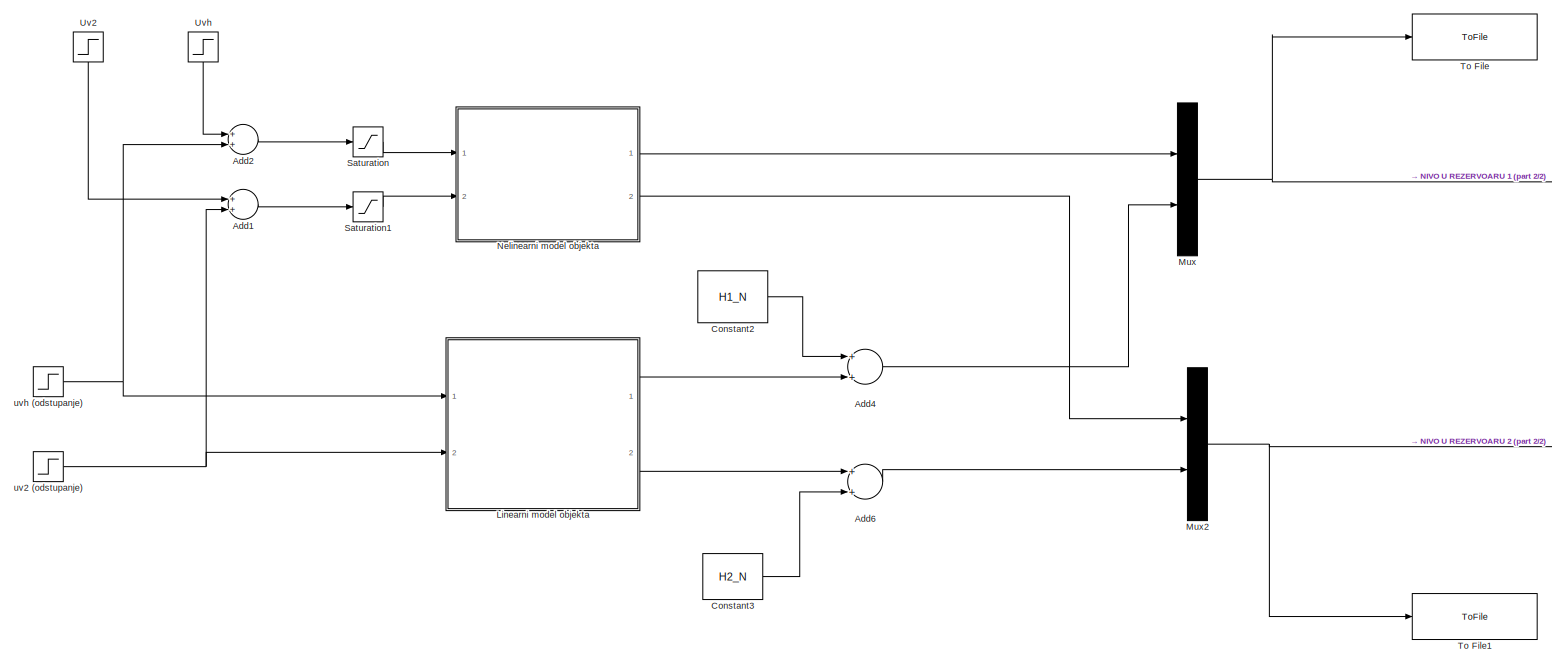
[diagram: root canvas - part 1/2, most of the canvas]
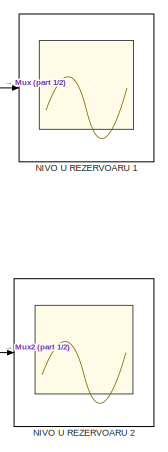
[diagram: root canvas - part 2/2, middle right region]
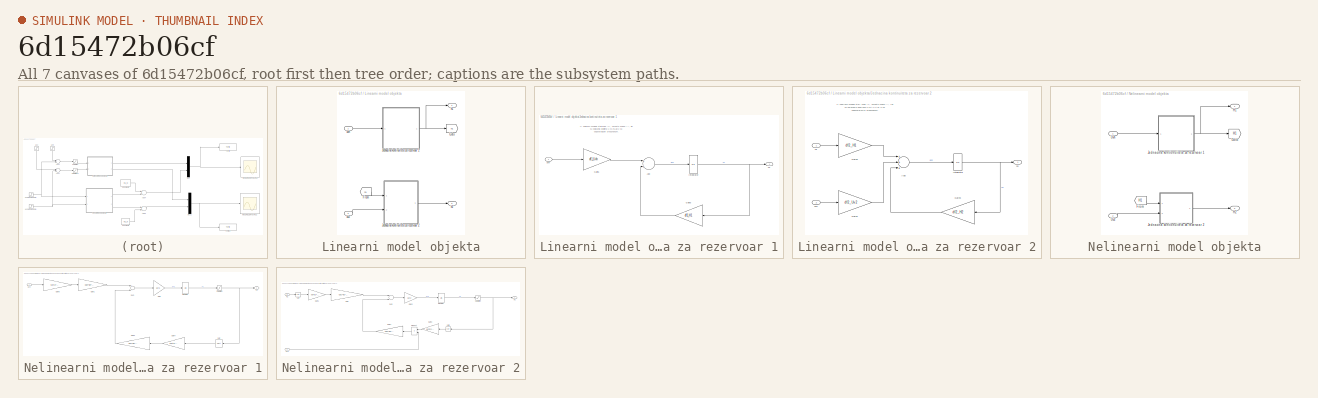
[diagram: thumbnail index - all 7 canvases of the model, root first then tree order]
MODEL slx_6d15472b06cf
KIND model
CONFIG AbsTol = auto
CONFIG FixedStep = 0.01
CONFIG MaxStep = auto
CONFIG MinStep = auto
CONFIG RelTol = 1e-3
CONFIG SampleTimeConstraint = Unconstrained
CONFIG Solver = ode4
CONFIG SolverMode = Auto
CONFIG SolverName = ode4
CONFIG StartTime = 0.0
CONFIG StopTime = 700
BLOCK [Sum] Add1
  InputSameDT = off
  OutDataTypeStr = Inherit: Inherit via internal rule
  Ports = [2, 1]
  SaturateOnIntegerOverflow = off
BLOCK [Sum] Add2
  InputSameDT = off
  OutDataTypeStr = Inherit: Inherit via internal rule
  Ports = [2, 1]
  SaturateOnIntegerOverflow = off
BLOCK [Sum] Add4
  InputSameDT = off
  OutDataTypeStr = Inherit: Inherit via internal rule
  Ports = [2, 1]
  SaturateOnIntegerOverflow = off
BLOCK [Sum] Add6
  InputSameDT = off
  OutDataTypeStr = Inherit: Inherit via internal rule
  Ports = [2, 1]
  SaturateOnIntegerOverflow = off
BLOCK [Constant] Constant2
  Value = H1_N
BLOCK [Constant] Constant3
  Value = H2_N
BLOCK [SubSystem] Linearni model objekta
  Ports = [2, 2]
  RequestExecContextInheritance = off
BLOCK [From] Linearni model objekta/From
  GotoTag = h1
BLOCK [Goto] Linearni model objekta/Goto
  GotoTag = h1
BLOCK [SubSystem] Linearni model objekta/Jednacina kontinuiteta za rezervoar 1
  Ports = [1, 1]
  RequestExecContextInheritance = off
BLOCK [Sum] Linearni model objekta/Jednacina kontinuiteta za rezervoar 1/Add
  InputSameDT = off
  OutDataTypeStr = Inherit: Inherit via internal rule
  Ports = [2, 1]
  SaturateOnIntegerOverflow = off
BLOCK [Gain] Linearni model objekta/Jednacina kontinuiteta za rezervoar 1/Gain1
  Gain = df1_Uvh
  OutDataTypeStr = Inherit: Inherit via internal rule
  ParamDataTypeStr = Inherit: Inherit via internal rule
  SaturateOnIntegerOverflow = off
BLOCK [Gain] Linearni model objekta/Jednacina kontinuiteta za rezervoar 1/Gain3
  Gain = df1_H1
  OutDataTypeStr = Inherit: Inherit via internal rule
  ParamDataTypeStr = Inherit: Inherit via internal rule
  SaturateOnIntegerOverflow = off
BLOCK [Integrator] Linearni model objekta/Jednacina kontinuiteta za rezervoar 1/Integrator
  Ports = [1, 1]
BLOCK [Outport] Linearni model objekta/Jednacina kontinuiteta za rezervoar 1/h1
  IconDisplay = Port number
BLOCK [Inport] Linearni model objekta/Jednacina kontinuiteta za rezervoar 1/uvh
  IconDisplay = Port number
BLOCK [SubSystem] Linearni model objekta/Jednacina kontinuiteta za rezervoar 2
  Ports = [2, 1]
  RequestExecContextInheritance = off
BLOCK [Sum] Linearni model objekta/Jednacina kontinuiteta za rezervoar 2/Add
  InputSameDT = off
  Inputs = +++
  OutDataTypeStr = Inherit: Inherit via internal rule
  Ports = [3, 1]
  SaturateOnIntegerOverflow = off
BLOCK [Gain] Linearni model objekta/Jednacina kontinuiteta za rezervoar 2/Gain1
  Gain = df2_Uv2
  OutDataTypeStr = Inherit: Inherit via internal rule
  ParamDataTypeStr = Inherit: Inherit via internal rule
  SaturateOnIntegerOverflow = off
BLOCK [Gain] Linearni model objekta/Jednacina kontinuiteta za rezervoar 2/Gain2
  Gain = df2_H1
  OutDataTypeStr = Inherit: Inherit via internal rule
  ParamDataTypeStr = Inherit: Inherit via internal rule
  SaturateOnIntegerOverflow = off
BLOCK [Gain] Linearni model objekta/Jednacina kontinuiteta za rezervoar 2/Gain3
  Gain = df2_H2
  OutDataTypeStr = Inherit: Inherit via internal rule
  ParamDataTypeStr = Inherit: Inherit via internal rule
  SaturateOnIntegerOverflow = off
BLOCK [Integrator] Linearni model objekta/Jednacina kontinuiteta za rezervoar 2/Integrator
  Ports = [1, 1]
BLOCK [Inport] Linearni model objekta/Jednacina kontinuiteta za rezervoar 2/h1
  IconDisplay = Port number
BLOCK [Outport] Linearni model objekta/Jednacina kontinuiteta za rezervoar 2/h2
  IconDisplay = Port number
BLOCK [Inport] Linearni model objekta/Jednacina kontinuiteta za rezervoar 2/uv2
  IconDisplay = Port number
  Port = 2
BLOCK [Outport] Linearni model objekta/h1
  IconDisplay = Port number
BLOCK [Outport] Linearni model objekta/h2
  IconDisplay = Port number
  Port = 2
BLOCK [Inport] Linearni model objekta/uv2
  IconDisplay = Port number
  Port = 2
BLOCK [Inport] Linearni model objekta/uvh
  IconDisplay = Port number
BLOCK [Mux] Mux
  DisplayOption = bar
  Inputs = 2
  Ports = [2, 1]
BLOCK [Mux] Mux2
  DisplayOption = bar
  Inputs = 2
  Ports = [2, 1]
BLOCK [Scope] NIVO U REZERVOARU 1
  Floating = off
  LimitDataPoints = off
  NumInputPorts = 1
  Ports = [1]
  SaveName = ScopeData3
BLOCK [Scope] NIVO U REZERVOARU 2
  Floating = off
  LimitDataPoints = off
  NumInputPorts = 1
  Ports = [1]
  SaveName = ScopeData4
BLOCK [SubSystem] Nelinearni model objekta
  Ports = [2, 2]
  RequestExecContextInheritance = off
BLOCK [From] Nelinearni model objekta/From
  GotoTag = H1
BLOCK [Goto] Nelinearni model objekta/Goto
  GotoTag = H1
BLOCK [Outport] Nelinearni model objekta/H1
  IconDisplay = Port number
BLOCK [Outport] Nelinearni model objekta/H2
  IconDisplay = Port number
  Port = 2
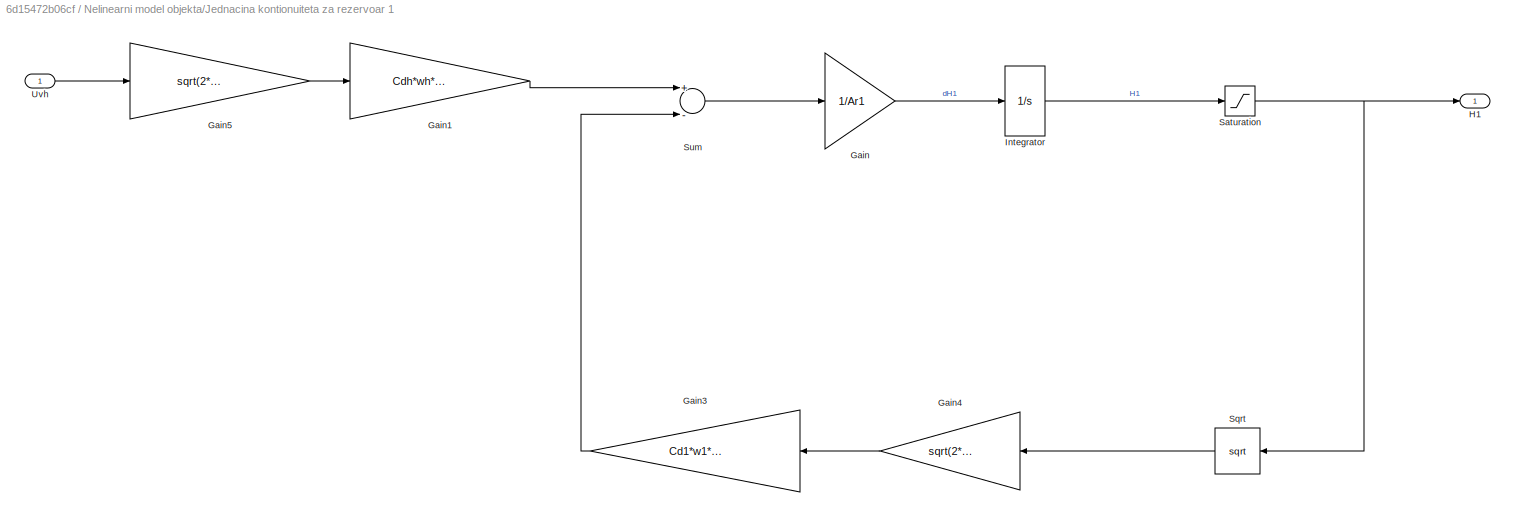
BLOCK [SubSystem] Nelinearni model objekta/Jednacina kontionuiteta za rezervoar 1
  Ports = [1, 1]
  RequestExecContextInheritance = off
BLOCK [Gain] Nelinearni model objekta/Jednacina kontionuiteta za rezervoar 1/Gain
  Gain = 1/Ar1
  OutDataTypeStr = Inherit: Inherit via internal rule
  ParamDataTypeStr = Inherit: Inherit via internal rule
  SaturateOnIntegerOverflow = off
BLOCK [Gain] Nelinearni model objekta/Jednacina kontionuiteta za rezervoar 1/Gain1
  Gain = Cdh*wh*Kvh
  OutDataTypeStr = Inherit: Inherit via internal rule
  ParamDataTypeStr = Inherit: Inherit via internal rule
  SaturateOnIntegerOverflow = off
BLOCK [Gain] Nelinearni model objekta/Jednacina kontionuiteta za rezervoar 1/Gain3
  Gain = Cd1*w1*Kv1*Uv1
  OutDataTypeStr = Inherit: Inherit via internal rule
  ParamDataTypeStr = Inherit: Inherit via internal rule
  SaturateOnIntegerOverflow = off
BLOCK [Gain] Nelinearni model objekta/Jednacina kontionuiteta za rezervoar 1/Gain4
  Gain = sqrt(2*g)
  OutDataTypeStr = Inherit: Inherit via internal rule
  ParamDataTypeStr = Inherit: Inherit via internal rule
  SaturateOnIntegerOverflow = off
BLOCK [Gain] Nelinearni model objekta/Jednacina kontionuiteta za rezervoar 1/Gain5
  Gain = sqrt(2*Ph/ro)
  OutDataTypeStr = Inherit: Inherit via internal rule
  ParamDataTypeStr = Inherit: Inherit via internal rule
  SaturateOnIntegerOverflow = off
BLOCK [Outport] Nelinearni model objekta/Jednacina kontionuiteta za rezervoar 1/H1
  IconDisplay = Port number
BLOCK [Integrator] Nelinearni model objekta/Jednacina kontionuiteta za rezervoar 1/Integrator
  InitialCondition = H1_N
  Ports = [1, 1]
BLOCK [Saturate] Nelinearni model objekta/Jednacina kontionuiteta za rezervoar 1/Saturation
  InputPortMap = u0
  LowerLimit = H1_min
  Ports = [1, 1]
  UpperLimit = H1_max
BLOCK [Sqrt] Nelinearni model objekta/Jednacina kontionuiteta za rezervoar 1/Sqrt
BLOCK [Sum] Nelinearni model objekta/Jednacina kontionuiteta za rezervoar 1/Sum
  InputSameDT = off
  Inputs = +-
  OutDataTypeStr = Inherit: Inherit via internal rule
  Ports = [2, 1]
  SaturateOnIntegerOverflow = off
BLOCK [Inport] Nelinearni model objekta/Jednacina kontionuiteta za rezervoar 1/Uvh
  IconDisplay = Port number
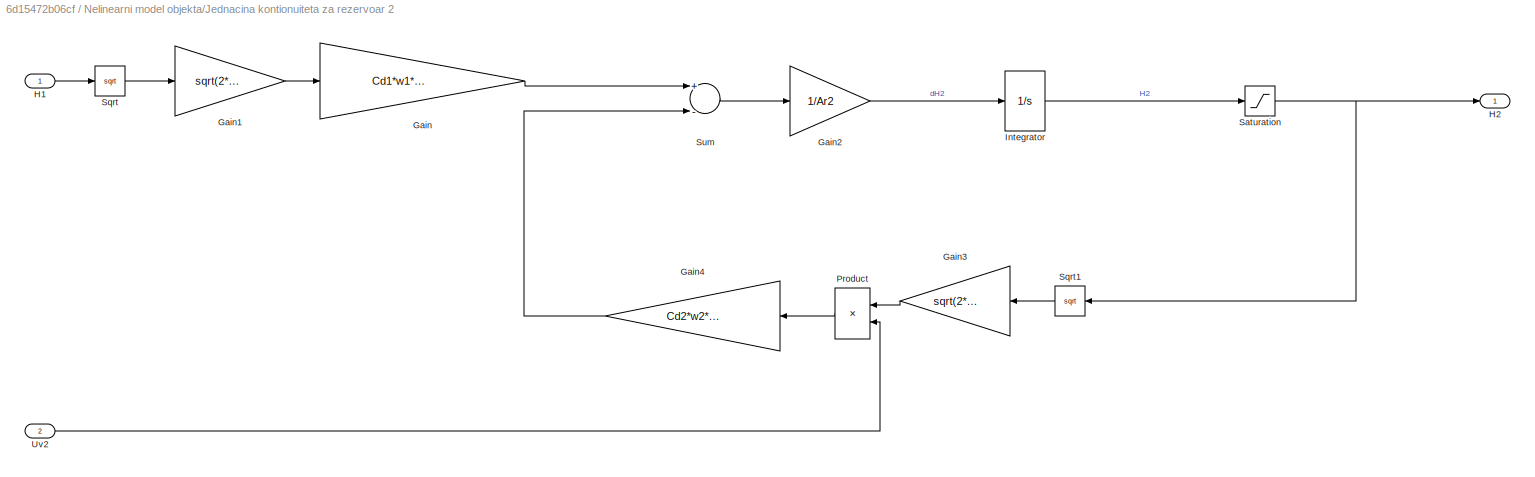
BLOCK [SubSystem] Nelinearni model objekta/Jednacina kontionuiteta za rezervoar 2
  Ports = [2, 1]
  RequestExecContextInheritance = off
BLOCK [Gain] Nelinearni model objekta/Jednacina kontionuiteta za rezervoar 2/Gain
  Gain = Cd1*w1*Kv1*Uv1
  OutDataTypeStr = Inherit: Inherit via internal rule
  ParamDataTypeStr = Inherit: Inherit via internal rule
  SaturateOnIntegerOverflow = off
BLOCK [Gain] Nelinearni model objekta/Jednacina kontionuiteta za rezervoar 2/Gain1
  Gain = sqrt(2*g)
  OutDataTypeStr = Inherit: Inherit via internal rule
  ParamDataTypeStr = Inherit: Inherit via internal rule
  SaturateOnIntegerOverflow = off
BLOCK [Gain] Nelinearni model objekta/Jednacina kontionuiteta za rezervoar 2/Gain2
  Gain = 1/Ar2
  OutDataTypeStr = Inherit: Inherit via internal rule
  ParamDataTypeStr = Inherit: Inherit via internal rule
  SaturateOnIntegerOverflow = off
BLOCK [Gain] Nelinearni model objekta/Jednacina kontionuiteta za rezervoar 2/Gain3
  Gain = sqrt(2*g)
  OutDataTypeStr = Inherit: Inherit via internal rule
  ParamDataTypeStr = Inherit: Inherit via internal rule
  SaturateOnIntegerOverflow = off
BLOCK [Gain] Nelinearni model objekta/Jednacina kontionuiteta za rezervoar 2/Gain4
  Gain = Cd2*w2*Kv2
  OutDataTypeStr = Inherit: Inherit via internal rule
  ParamDataTypeStr = Inherit: Inherit via internal rule
  SaturateOnIntegerOverflow = off
BLOCK [Inport] Nelinearni model objekta/Jednacina kontionuiteta za rezervoar 2/H1
  IconDisplay = Port number
BLOCK [Outport] Nelinearni model objekta/Jednacina kontionuiteta za rezervoar 2/H2
  IconDisplay = Port number
BLOCK [Integrator] Nelinearni model objekta/Jednacina kontionuiteta za rezervoar 2/Integrator
  InitialCondition = H2_N
  Ports = [1, 1]
BLOCK [Product] Nelinearni model objekta/Jednacina kontionuiteta za rezervoar 2/Product
  InputSameDT = off
  OutDataTypeStr = Inherit: Inherit via internal rule
  Ports = [2, 1]
  RndMeth = Floor
  SaturateOnIntegerOverflow = off
BLOCK [Saturate] Nelinearni model objekta/Jednacina kontionuiteta za rezervoar 2/Saturation
  InputPortMap = u0
  LowerLimit = H2_min
  Ports = [1, 1]
  UpperLimit = H2_max
BLOCK [Sqrt] Nelinearni model objekta/Jednacina kontionuiteta za rezervoar 2/Sqrt
BLOCK [Sqrt] Nelinearni model objekta/Jednacina kontionuiteta za rezervoar 2/Sqrt1
BLOCK [Sum] Nelinearni model objekta/Jednacina kontionuiteta za rezervoar 2/Sum
  InputSameDT = off
  Inputs = +-
  OutDataTypeStr = Inherit: Inherit via internal rule
  Ports = [2, 1]
  SaturateOnIntegerOverflow = off
BLOCK [Inport] Nelinearni model objekta/Jednacina kontionuiteta za rezervoar 2/Uv2
  IconDisplay = Port number
  Port = 2
BLOCK [Inport] Nelinearni model objekta/Uv2
  IconDisplay = Port number
  Port = 2
BLOCK [Inport] Nelinearni model objekta/Uvh
  IconDisplay = Port number
BLOCK [Saturate] Saturation
  InputPortMap = u0
  LowerLimit = Uvh_min
  Ports = [1, 1]
  UpperLimit = Uvh_max
BLOCK [Saturate] Saturation1
  InputPortMap = u0
  LowerLimit = Uv2_min
  Ports = [1, 1]
  UpperLimit = Uv2_max
BLOCK [ToFile] To File
  Filename = R1_nivo_neupravljani.mat
  MatrixName = H1_neupravljani
  Ports = [1]
BLOCK [ToFile] To File1
  Filename = R2_nivo_neupravljani.mat
  MatrixName = H2_neupravljani
  Ports = [1]
BLOCK [Step] Uv2
  After = Uv2_N
  SampleTime = 0
  Time = 0
BLOCK [Step] Uvh
  After = Uvh_N
  SampleTime = 0
  Time = 0
BLOCK [Step] uv2 (odstupanje)
  After = 0
  SampleTime = 0
  Time = 0
BLOCK [Step] uvh (odstupanje)
  After = 0.1
  SampleTime = 0
  Time = 150
ANNOTATION Linearni model objekta/Jednacina kontinuiteta za rezervoar 1: U sabiracu svugde stoji znak "+", umesto znaka "-", jer su pojacanja dobijena u MATLAB-u sa odgovarajucim predznakom.
ANNOTATION Linearni model objekta/Jednacina kontinuiteta za rezervoar 2: U sabiracu svugde stoji znak "+", umesto znaka "-", jer su pojacanja dobijena u MATLAB-u sa odgovarajucim predznakom.
LINE Add1:1 -> Saturation1:1
LINE Add2:1 -> Saturation:1
LINE Add4:1 -> Mux:2
LINE Add6:1 -> Mux2:2
LINE Constant2:1 -> Add4:1
LINE Constant3:1 -> Add6:2
LINE Linearni model objekta/From:1 -> Linearni model objekta/Jednacina kontinuiteta za rezervoar 2:1
LINE Linearni model objekta/Jednacina kontinuiteta za rezervoar 1/Add:1 -> Linearni model objekta/Jednacina kontinuiteta za rezervoar 1/Integrator:1
LINE Linearni model objekta/Jednacina kontinuiteta za rezervoar 1/Gain1:1 -> Linearni model objekta/Jednacina kontinuiteta za rezervoar 1/Add:1
LINE Linearni model objekta/Jednacina kontinuiteta za rezervoar 1/Gain3:1 -> Linearni model objekta/Jednacina kontinuiteta za rezervoar 1/Add:2
NET Linearni model objekta/Jednacina kontinuiteta za rezervoar 1/Integrator:1 -> Linearni model objekta/Jednacina kontinuiteta za rezervoar 1/Gain3:1, Linearni model objekta/Jednacina kontinuiteta za rezervoar 1/h1:1
LINE Linearni model objekta/Jednacina kontinuiteta za rezervoar 1/uvh:1 -> Linearni model objekta/Jednacina kontinuiteta za rezervoar 1/Gain1:1
NET Linearni model objekta/Jednacina kontinuiteta za rezervoar 1:1 -> Linearni model objekta/Goto:1, Linearni model objekta/h1:1
LINE Linearni model objekta/Jednacina kontinuiteta za rezervoar 2/Add:1 -> Linearni model objekta/Jednacina kontinuiteta za rezervoar 2/Integrator:1
LINE Linearni model objekta/Jednacina kontinuiteta za rezervoar 2/Gain1:1 -> Linearni model objekta/Jednacina kontinuiteta za rezervoar 2/Add:2
LINE Linearni model objekta/Jednacina kontinuiteta za rezervoar 2/Gain2:1 -> Linearni model objekta/Jednacina kontinuiteta za rezervoar 2/Add:1
LINE Linearni model objekta/Jednacina kontinuiteta za rezervoar 2/Gain3:1 -> Linearni model objekta/Jednacina kontinuiteta za rezervoar 2/Add:3
NET Linearni model objekta/Jednacina kontinuiteta za rezervoar 2/Integrator:1 -> Linearni model objekta/Jednacina kontinuiteta za rezervoar 2/Gain3:1, Linearni model objekta/Jednacina kontinuiteta za rezervoar 2/h2:1
LINE Linearni model objekta/Jednacina kontinuiteta za rezervoar 2/h1:1 -> Linearni model objekta/Jednacina kontinuiteta za rezervoar 2/Gain2:1
LINE Linearni model objekta/Jednacina kontinuiteta za rezervoar 2/uv2:1 -> Linearni model objekta/Jednacina kontinuiteta za rezervoar 2/Gain1:1
LINE Linearni model objekta/Jednacina kontinuiteta za rezervoar 2:1 -> Linearni model objekta/h2:1
LINE Linearni model objekta/uv2:1 -> Linearni model objekta/Jednacina kontinuiteta za rezervoar 2:2
LINE Linearni model objekta/uvh:1 -> Linearni model objekta/Jednacina kontinuiteta za rezervoar 1:1
LINE Linearni model objekta:1 -> Add4:2
LINE Linearni model objekta:2 -> Add6:1
NET Mux2:1 -> NIVO U REZERVOARU 2:1, To File1:1
NET Mux:1 -> NIVO U REZERVOARU 1:1, To File:1
LINE Nelinearni model objekta/From:1 -> Nelinearni model objekta/Jednacina kontionuiteta za rezervoar 2:1
LINE Nelinearni model objekta/Jednacina kontionuiteta za rezervoar 1/Gain1:1 -> Nelinearni model objekta/Jednacina kontionuiteta za rezervoar 1/Sum:1
LINE Nelinearni model objekta/Jednacina kontionuiteta za rezervoar 1/Gain3:1 -> Nelinearni model objekta/Jednacina kontionuiteta za rezervoar 1/Sum:2
LINE Nelinearni model objekta/Jednacina kontionuiteta za rezervoar 1/Gain4:1 -> Nelinearni model objekta/Jednacina kontionuiteta za rezervoar 1/Gain3:1
LINE Nelinearni model objekta/Jednacina kontionuiteta za rezervoar 1/Gain5:1 -> Nelinearni model objekta/Jednacina kontionuiteta za rezervoar 1/Gain1:1
LINE Nelinearni model objekta/Jednacina kontionuiteta za rezervoar 1/Gain:1 -> Nelinearni model objekta/Jednacina kontionuiteta za rezervoar 1/Integrator:1
LINE Nelinearni model objekta/Jednacina kontionuiteta za rezervoar 1/Integrator:1 -> Nelinearni model objekta/Jednacina kontionuiteta za rezervoar 1/Saturation:1
NET Nelinearni model objekta/Jednacina kontionuiteta za rezervoar 1/Saturation:1 -> Nelinearni model objekta/Jednacina kontionuiteta za rezervoar 1/H1:1, Nelinearni model objekta/Jednacina kontionuiteta za rezervoar 1/Sqrt:1
LINE Nelinearni model objekta/Jednacina kontionuiteta za rezervoar 1/Sqrt:1 -> Nelinearni model objekta/Jednacina kontionuiteta za rezervoar 1/Gain4:1
LINE Nelinearni model objekta/Jednacina kontionuiteta za rezervoar 1/Sum:1 -> Nelinearni model objekta/Jednacina kontionuiteta za rezervoar 1/Gain:1
LINE Nelinearni model objekta/Jednacina kontionuiteta za rezervoar 1/Uvh:1 -> Nelinearni model objekta/Jednacina kontionuiteta za rezervoar 1/Gain5:1
NET Nelinearni model objekta/Jednacina kontionuiteta za rezervoar 1:1 -> Nelinearni model objekta/Goto:1, Nelinearni model objekta/H1:1
LINE Nelinearni model objekta/Jednacina kontionuiteta za rezervoar 2/Gain1:1 -> Nelinearni model objekta/Jednacina kontionuiteta za rezervoar 2/Gain:1
LINE Nelinearni model objekta/Jednacina kontionuiteta za rezervoar 2/Gain2:1 -> Nelinearni model objekta/Jednacina kontionuiteta za rezervoar 2/Integrator:1
LINE Nelinearni model objekta/Jednacina kontionuiteta za rezervoar 2/Gain3:1 -> Nelinearni model objekta/Jednacina kontionuiteta za rezervoar 2/Product:1
LINE Nelinearni model objekta/Jednacina kontionuiteta za rezervoar 2/Gain4:1 -> Nelinearni model objekta/Jednacina kontionuiteta za rezervoar 2/Sum:2
LINE Nelinearni model objekta/Jednacina kontionuiteta za rezervoar 2/Gain:1 -> Nelinearni model objekta/Jednacina kontionuiteta za rezervoar 2/Sum:1
LINE Nelinearni model objekta/Jednacina kontionuiteta za rezervoar 2/H1:1 -> Nelinearni model objekta/Jednacina kontionuiteta za rezervoar 2/Sqrt:1
LINE Nelinearni model objekta/Jednacina kontionuiteta za rezervoar 2/Integrator:1 -> Nelinearni model objekta/Jednacina kontionuiteta za rezervoar 2/Saturation:1
LINE Nelinearni model objekta/Jednacina kontionuiteta za rezervoar 2/Product:1 -> Nelinearni model objekta/Jednacina kontionuiteta za rezervoar 2/Gain4:1
NET Nelinearni model objekta/Jednacina kontionuiteta za rezervoar 2/Saturation:1 -> Nelinearni model objekta/Jednacina kontionuiteta za rezervoar 2/H2:1, Nelinearni model objekta/Jednacina kontionuiteta za rezervoar 2/Sqrt1:1
LINE Nelinearni model objekta/Jednacina kontionuiteta za rezervoar 2/Sqrt1:1 -> Nelinearni model objekta/Jednacina kontionuiteta za rezervoar 2/Gain3:1
LINE Nelinearni model objekta/Jednacina kontionuiteta za rezervoar 2/Sqrt:1 -> Nelinearni model objekta/Jednacina kontionuiteta za rezervoar 2/Gain1:1
LINE Nelinearni model objekta/Jednacina kontionuiteta za rezervoar 2/Sum:1 -> Nelinearni model objekta/Jednacina kontionuiteta za rezervoar 2/Gain2:1
LINE Nelinearni model objekta/Jednacina kontionuiteta za rezervoar 2/Uv2:1 -> Nelinearni model objekta/Jednacina kontionuiteta za rezervoar 2/Product:2
LINE Nelinearni model objekta/Jednacina kontionuiteta za rezervoar 2:1 -> Nelinearni model objekta/H2:1
LINE Nelinearni model objekta/Uv2:1 -> Nelinearni model objekta/Jednacina kontionuiteta za rezervoar 2:2
LINE Nelinearni model objekta/Uvh:1 -> Nelinearni model objekta/Jednacina kontionuiteta za rezervoar 1:1
LINE Nelinearni model objekta:1 -> Mux:1
LINE Nelinearni model objekta:2 -> Mux2:1
LINE Saturation1:1 -> Nelinearni model objekta:2
LINE Saturation:1 -> Nelinearni model objekta:1
LINE Uv2:1 -> Add1:1
LINE Uvh:1 -> Add2:1
NET uv2 (odstupanje):1 -> Add1:2, Linearni model objekta:2
NET uvh (odstupanje):1 -> Add2:2, Linearni model objekta:1
note: NET lines group one-source signal fan-out (src -> all destinations, sorted); 1:1 wires keep LINE
